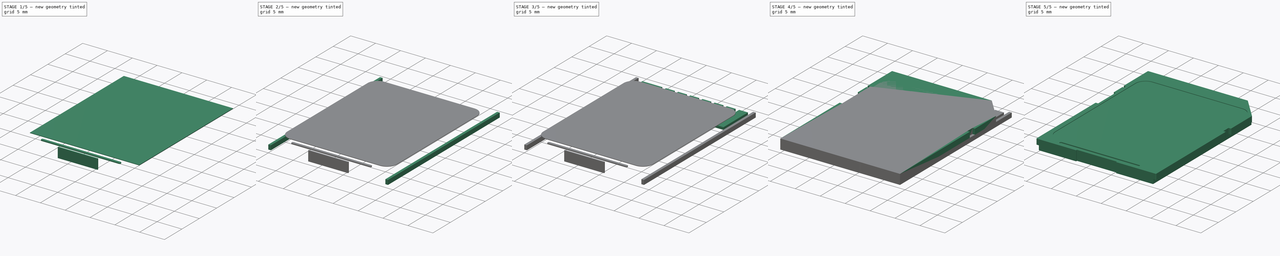
[diagram: build sequence overview — one tinted view per stage of 5, left to right]
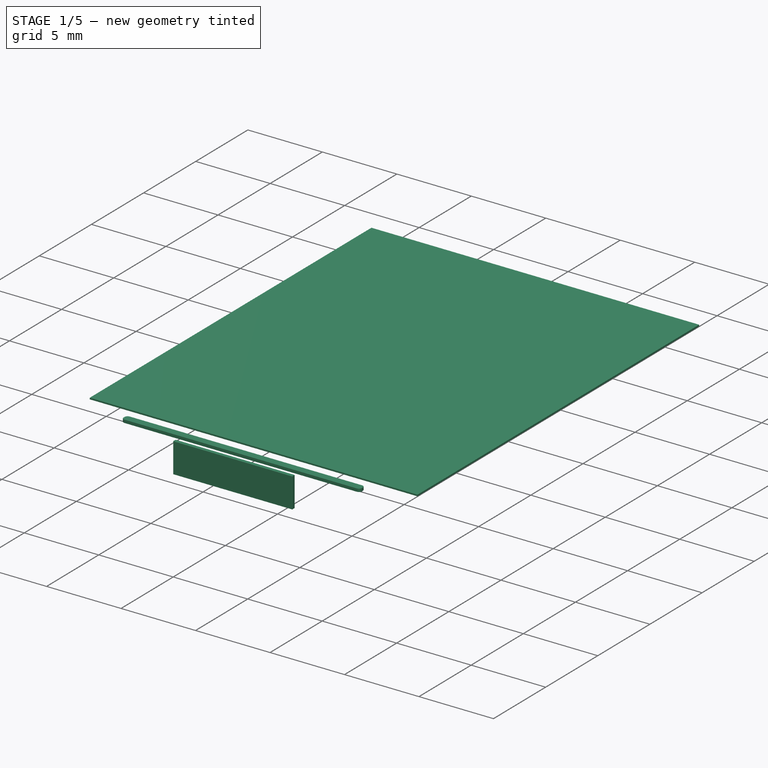
[diagram: stage 1 of 5 — iso view after this stage's code; geometry added in this stage tinted green]
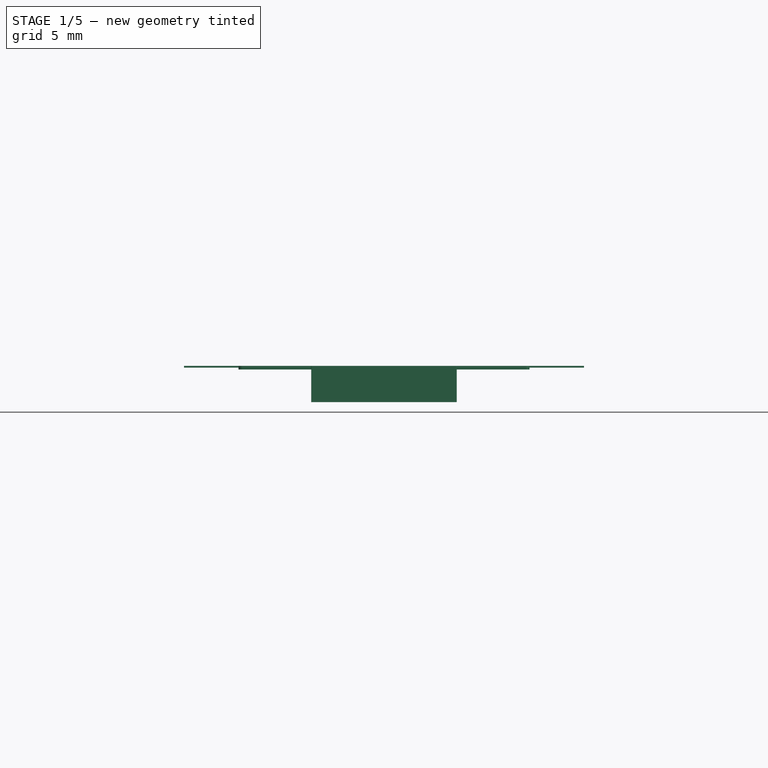
[diagram: stage 1 of 5 — front view after this stage's code; geometry added in this stage tinted green]
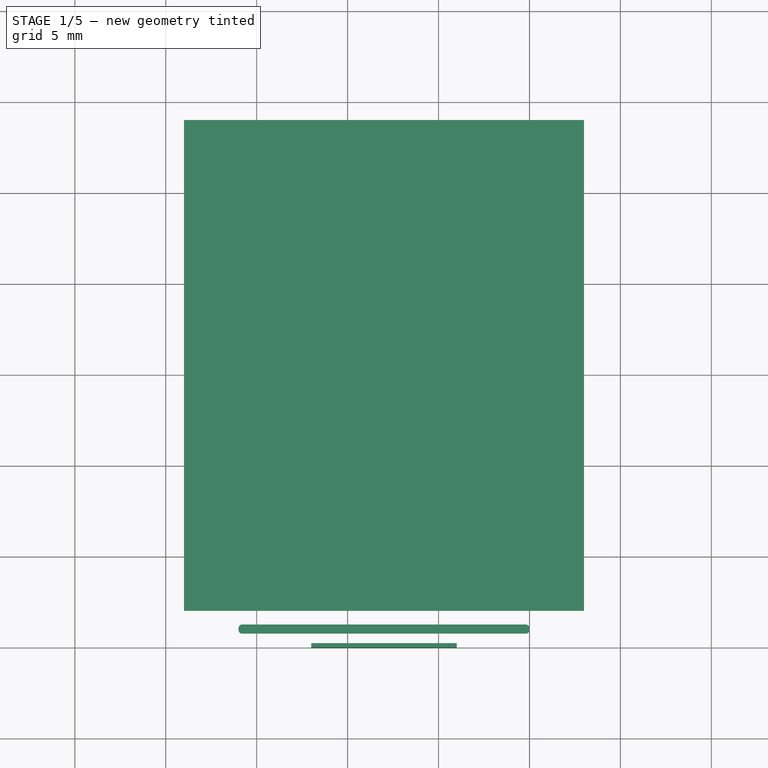
[diagram: stage 1 of 5 — top view after this stage's code; geometry added in this stage tinted green]
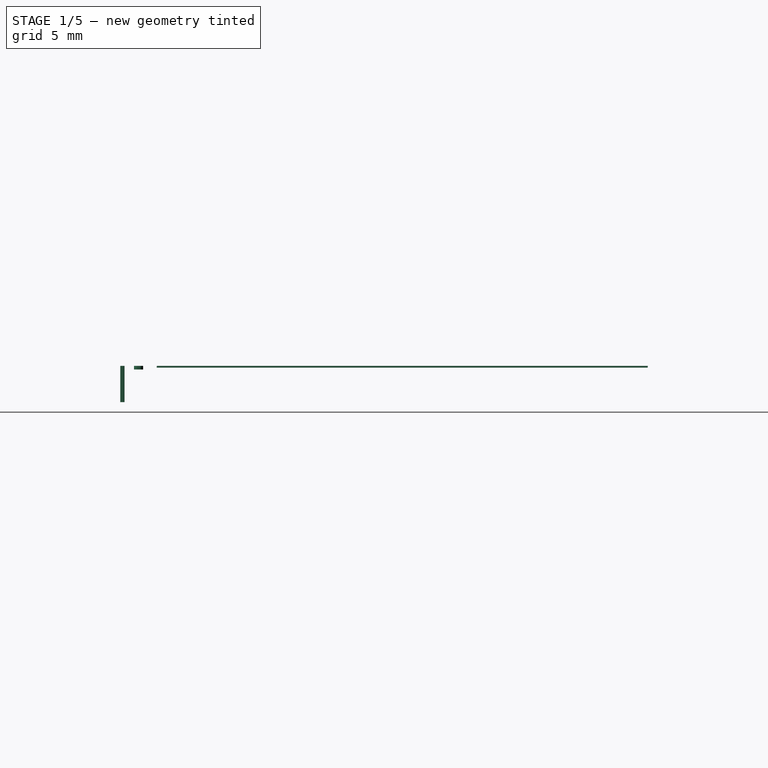
[diagram: stage 1 of 5 — right view after this stage's code; geometry added in this stage tinted green]
FCSTD DOCUMENT  (FreeCAD 0.16R6703 (Git))
Label: Generic_SD_card
License: All rights reserved
LicenseURL: http://en.wikipedia.org/wiki/All_rights_reserved
objects: Sketcher::SketchObject×10, PartDesign::Pad×10, Part::Fillet×6, Part::MultiFuse×5, Part::Cut×2, Part::FeaturePython×1, Part::Feature×1
note: 45 computed .brp shape members not serialized (recipe doc carries the construction recipe); baked Part::Feature solids carry a one-line shape summary decoded from their .brp

FEATURE [Sketcher::SketchObject] Sketch007  label="sticker_hole"
  Placement = pos=(0,0,1.9) rot=(0,0,1;0rad)
  sketch-geometry (4):
    g0: LineSegment StartX=1 StartY=29 StartZ=0 EndX=23 EndY=29 EndZ=0
    g1: LineSegment StartX=23 StartY=29 StartZ=0 EndX=23 EndY=2 EndZ=0
    g2: LineSegment StartX=23 StartY=2 StartZ=0 EndX=1 EndY=2 EndZ=0
    g3: LineSegment StartX=1 StartY=2 StartZ=0 EndX=1 EndY=29 EndZ=0
  constraints (8):
    c: Coincident(g0,g1)
    c: Coincident(g1,g2)
    c: Coincident(g2,g3)
    c: Coincident(g3,g0)
    c: Horizontal(g0)
    c: Horizontal(g2)
    c: Vertical(g1)
    c: Vertical(g3)
FEATURE [PartDesign::Pad] Pad007  label="sticker_hole001"
  Length = 0.1
  Length2 = 100
  Placement = pos=(0,0,1.9) rot=(0,0,1;0rad)
  Sketch = -> Sketch007
  Type = 0
FEATURE [Sketcher::SketchObject] Sketch008  label="nail_groove"
  Placement = pos=(0,0,1.8) rot=(0,0,1;0rad)
  sketch-geometry (4):
    g0: LineSegment StartX=4 StartY=0.75 StartZ=0 EndX=20 EndY=0.75 EndZ=0
    g1: LineSegment StartX=20 StartY=0.75 StartZ=0 EndX=20 EndY=1.25 EndZ=0
    g2: LineSegment StartX=20 StartY=1.25 StartZ=0 EndX=4 EndY=1.25 EndZ=0
    g3: LineSegment StartX=4 StartY=1.25 StartZ=0 EndX=4 EndY=0.75 EndZ=0
  constraints (10):
    c: Coincident(g0,g1)
    c: Coincident(g1,g2)
    c: Coincident(g2,g3)
    c: Coincident(g3,g0)
    c: Horizontal(g0)
    c: Horizontal(g2)
    c: Vertical(g1)
    c: Vertical(g3)
    c: DistanceY(g0,g2) = 0.5
    c: DistanceY(g-1,g0) = 0.75
FEATURE [PartDesign::Pad] Pad008  label="nail_groove001"
  Length = 0.2
  Length2 = 100
  Placement = pos=(0,0,1.8) rot=(0,0,1;0rad)
  Sketch = -> Sketch008
  Type = 0
FEATURE [Part::Fillet] Fillet004  label="nail_groove002"
  Base = -> Pad008
  Edges = 4 edges r=0.2: [Edge1,Edge2,Edge5,Edge8]
FEATURE [Sketcher::SketchObject] Sketch009  label="botton_hole"
  Placement = pos=(0,-0.01,0) rot=(0,0,1;0rad)
  sketch-geometry (4):
    g0: LineSegment StartX=8 StartY=0 StartZ=0 EndX=16 EndY=0 EndZ=0
    g1: LineSegment StartX=16 StartY=0 StartZ=0 EndX=16 EndY=0.235859 EndZ=0
    g2: LineSegment StartX=16 StartY=0.235859 StartZ=0 EndX=8 EndY=0.235859 EndZ=0
    g3: LineSegment StartX=8 StartY=0.235859 StartZ=0 EndX=8 EndY=0 EndZ=0
  constraints (9):
    c: Coincident(g0,g1)
    c: Coincident(g1,g2)
    c: Coincident(g2,g3)
    c: Coincident(g3,g0)
    c: Horizontal(g0)
    c: Horizontal(g2)
    c: Vertical(g1)
    c: Vertical(g3)
    c: PointOnObject(g0,g-1)
FEATURE [PartDesign::Pad] Pad009  label="bottom_hole"
  Length = 2
  Length2 = 100
  Placement = pos=(0,-0.01,0) rot=(0,0,1;0rad)
  Sketch = -> Sketch009
  Type = 0
FEATURE [Part::Fillet] Fillet005  label="bottom_hole001"
  Base = -> Pad009
  Edges = 4 edges r=0.02: [Edge1,Edge2,Edge5,Edge8]
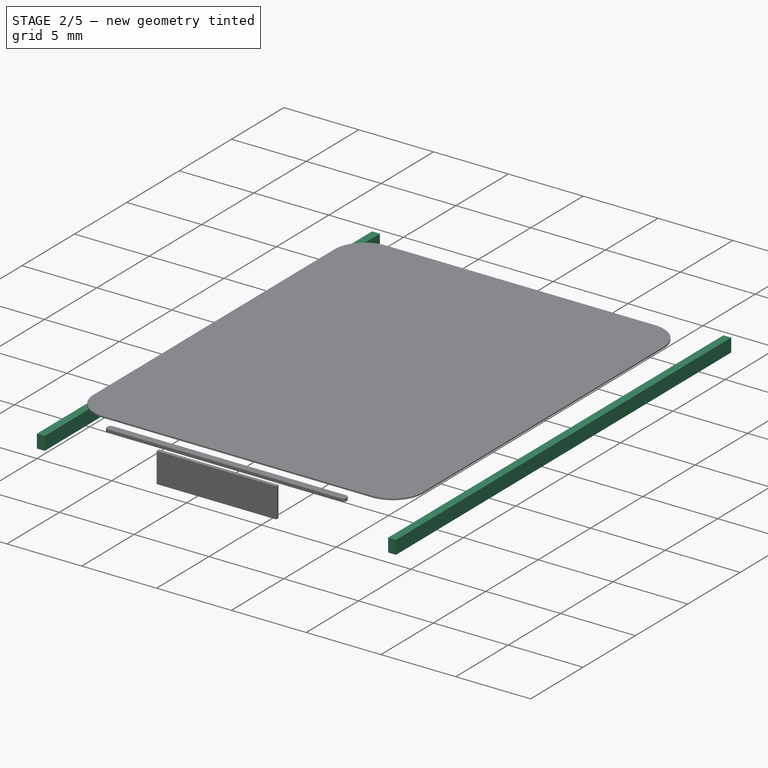
[diagram: stage 2 of 5 — iso view after this stage's code; geometry added in this stage tinted green]
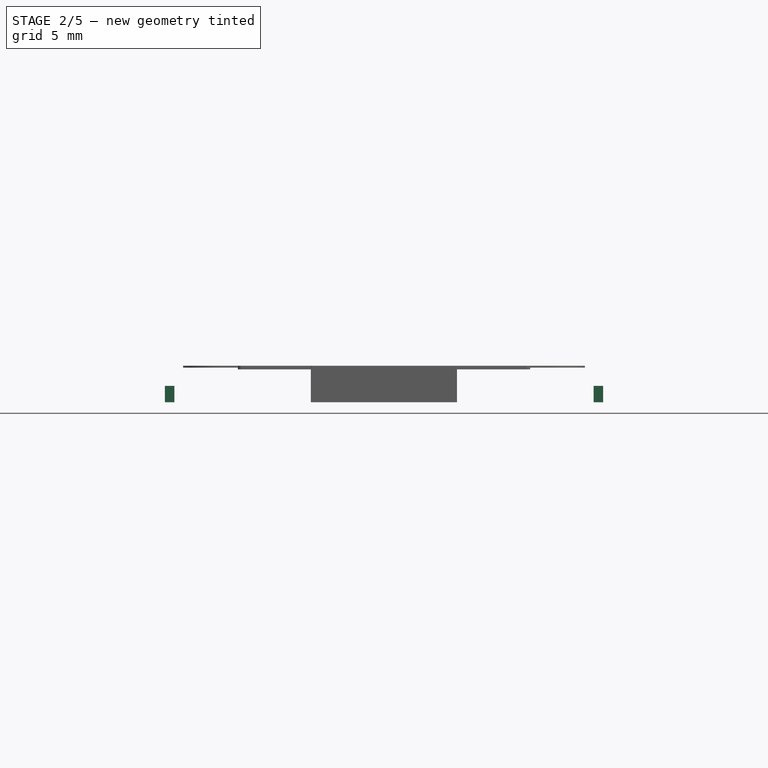
[diagram: stage 2 of 5 — front view after this stage's code; geometry added in this stage tinted green]
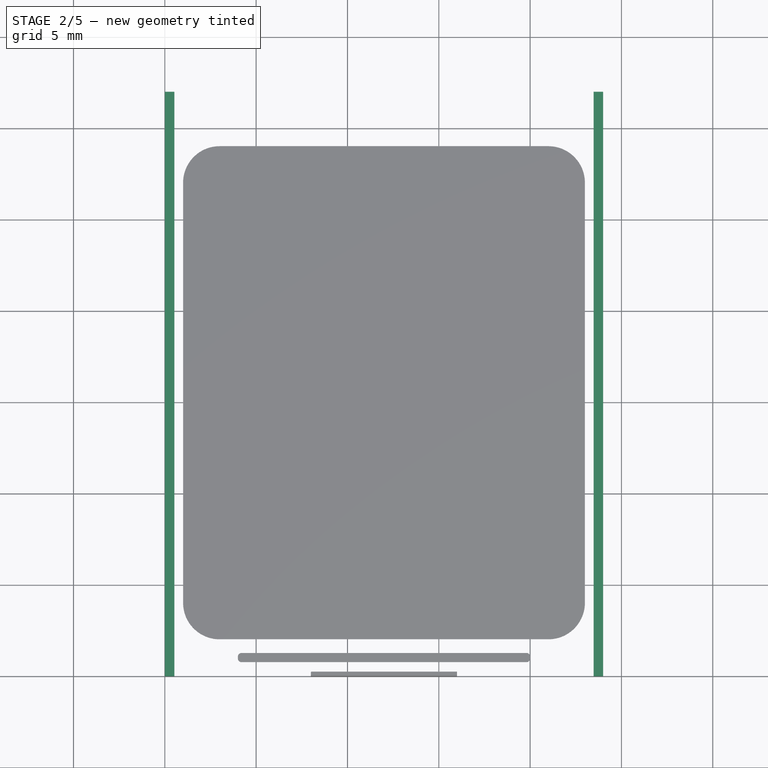
[diagram: stage 2 of 5 — top view after this stage's code; geometry added in this stage tinted green]
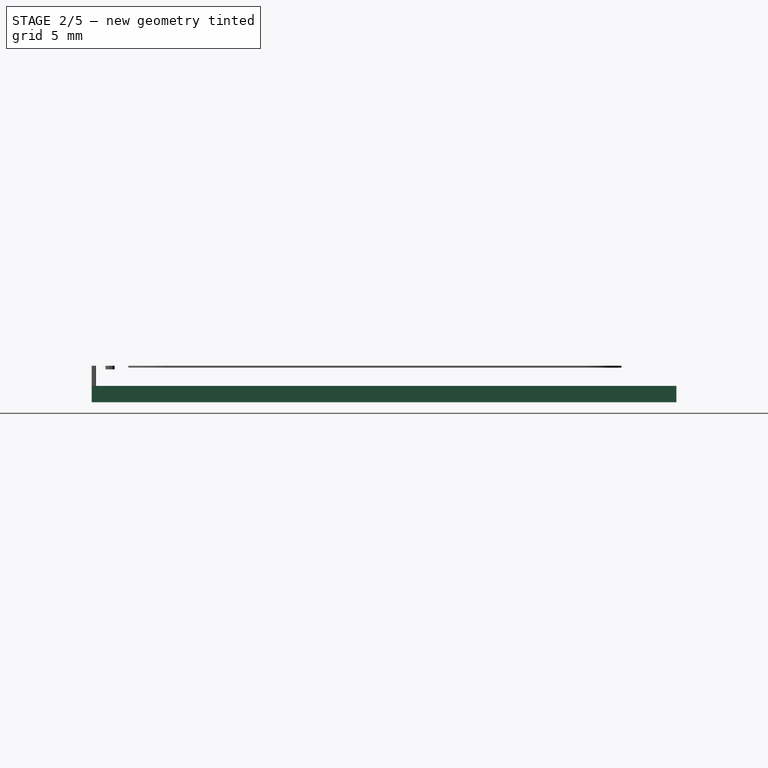
[diagram: stage 2 of 5 — right view after this stage's code; geometry added in this stage tinted green]
FEATURE [Sketcher::SketchObject] Sketch005  label="rail"
  Placement = pos=(0,0,0) rot=(1,0,0;3.14159rad)
  sketch-geometry (4):
    g0: LineSegment StartX=0 StartY=0 StartZ=0 EndX=0.521208 EndY=0 EndZ=0
    g1: LineSegment StartX=0.521208 StartY=0 StartZ=0 EndX=0.521208 EndY=-32 EndZ=0
    g2: LineSegment StartX=0.521208 StartY=-32 StartZ=0 EndX=0 EndY=-32 EndZ=0
    g3: LineSegment StartX=0 StartY=-32 StartZ=0 EndX=0 EndY=0 EndZ=0
  constraints (9):
    c: Coincident(g0,g1)
    c: Coincident(g1,g2)
    c: Coincident(g2,g3)
    c: Coincident(g3,g0)
    c: Horizontal(g0)
    c: Horizontal(g2)
    c: Vertical(g1)
    c: Vertical(g3)
    c: Coincident(g0,g-1)
FEATURE [PartDesign::Pad] Pad005  label="rail001"
  Length = 0.9
  Length2 = 100
  Placement = pos=(0,0,0) rot=(1,0,0;3.14159rad)
  Reversed = true
  Sketch = -> Sketch005
  Type = 0
FEATURE [Sketcher::SketchObject] Sketch006  label="rail002"
  Placement = pos=(23.479,0,0) rot=(1,0,0;3.14159rad)
  sketch-geometry (4):
    g0: LineSegment StartX=0 StartY=0 StartZ=0 EndX=0.521208 EndY=0 EndZ=0
    g1: LineSegment StartX=0.521208 StartY=0 StartZ=0 EndX=0.521208 EndY=-32 EndZ=0
    g2: LineSegment StartX=0.521208 StartY=-32 StartZ=0 EndX=0 EndY=-32 EndZ=0
    g3: LineSegment StartX=0 StartY=-32 StartZ=0 EndX=0 EndY=0 EndZ=0
  constraints (9):
    c: Coincident(g0,g1)
    c: Coincident(g1,g2)
    c: Coincident(g2,g3)
    c: Coincident(g3,g0)
    c: Horizontal(g0)
    c: Horizontal(g2)
    c: Vertical(g1)
    c: Vertical(g3)
    c: Coincident(g0,g-1)
FEATURE [PartDesign::Pad] Pad006  label="rail003"
  Length = 0.9
  Length2 = 100
  Placement = pos=(23.479,0,0) rot=(1,0,0;3.14159rad)
  Reversed = true
  Sketch = -> Sketch006
  Type = 0
FEATURE [Part::MultiFuse] Fusion003  label="rails"
  Shapes = -> [Pad005,Pad006]
FEATURE [Part::Fillet] Fillet003  label="sticker_hole002"
  Base = -> Pad007
  Edges = 4 edges r=2: [Edge1,Edge2,Edge5,Edge8]
FEATURE [Part::MultiFuse] Fusion005  label="groove_sticker_bottom_hole"
  Shapes = -> [Fillet005,Fillet004,Fillet003]
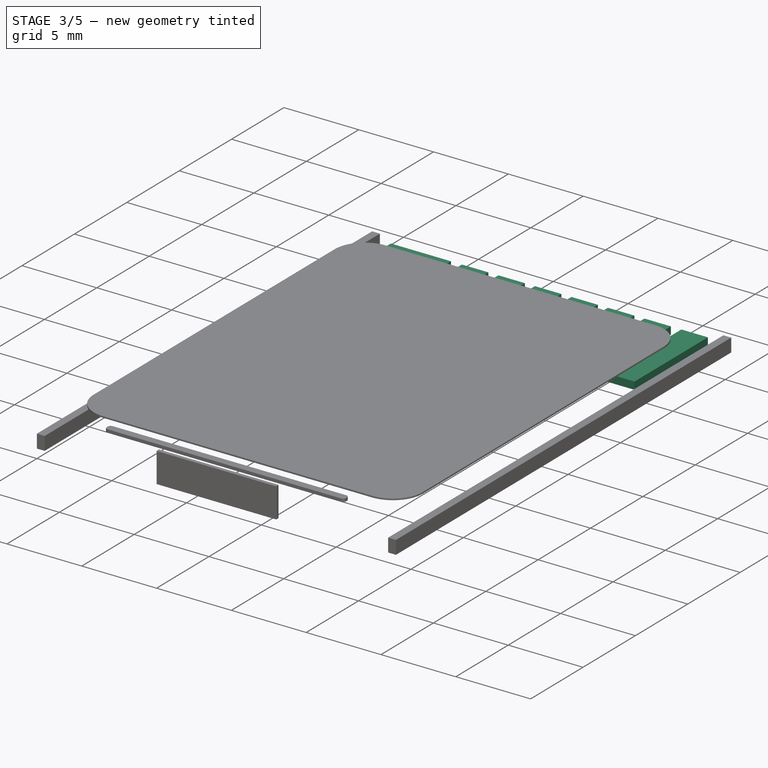
[diagram: stage 3 of 5 — iso view after this stage's code; geometry added in this stage tinted green]
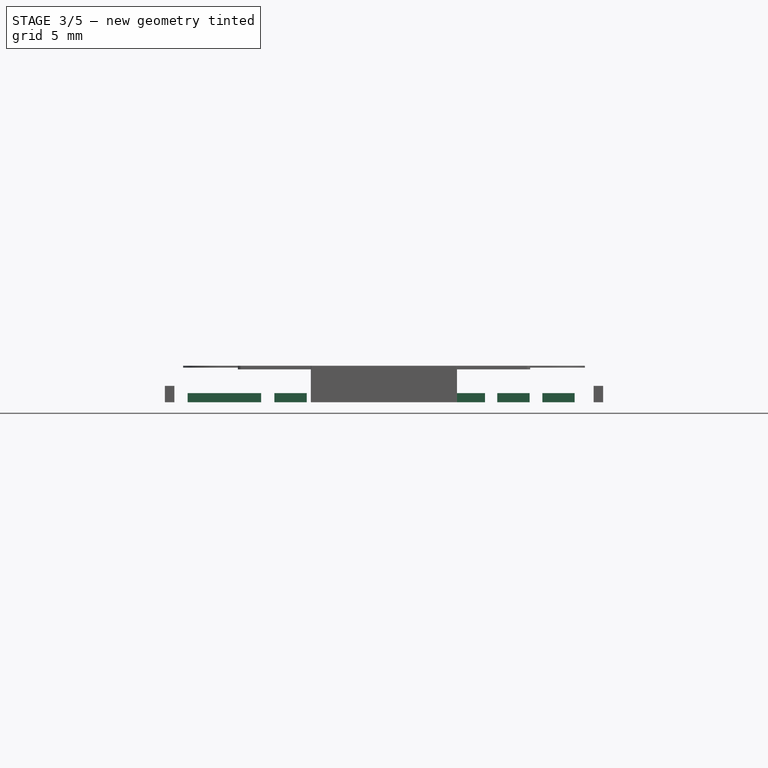
[diagram: stage 3 of 5 — front view after this stage's code; geometry added in this stage tinted green]
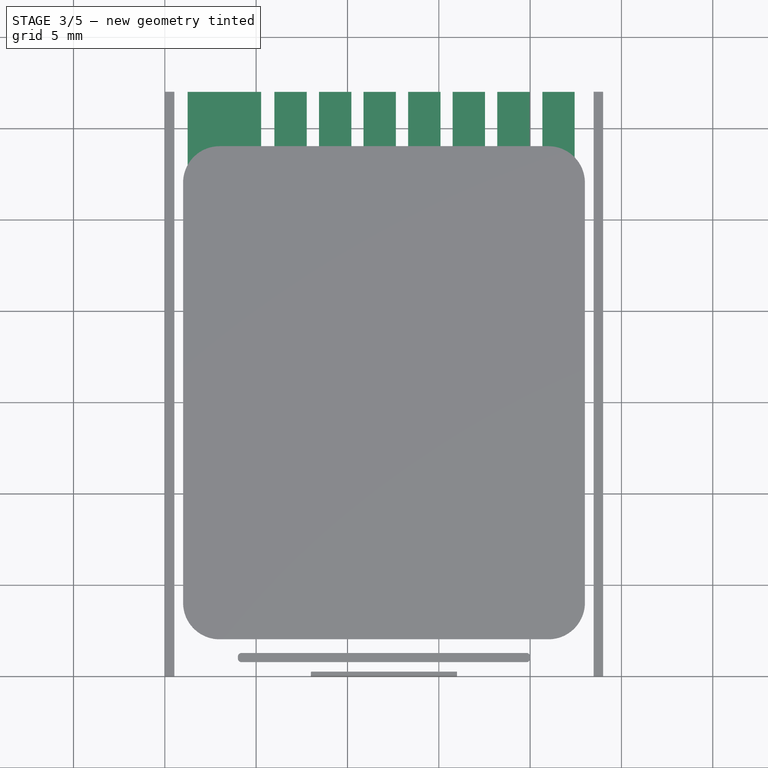
[diagram: stage 3 of 5 — top view after this stage's code; geometry added in this stage tinted green]
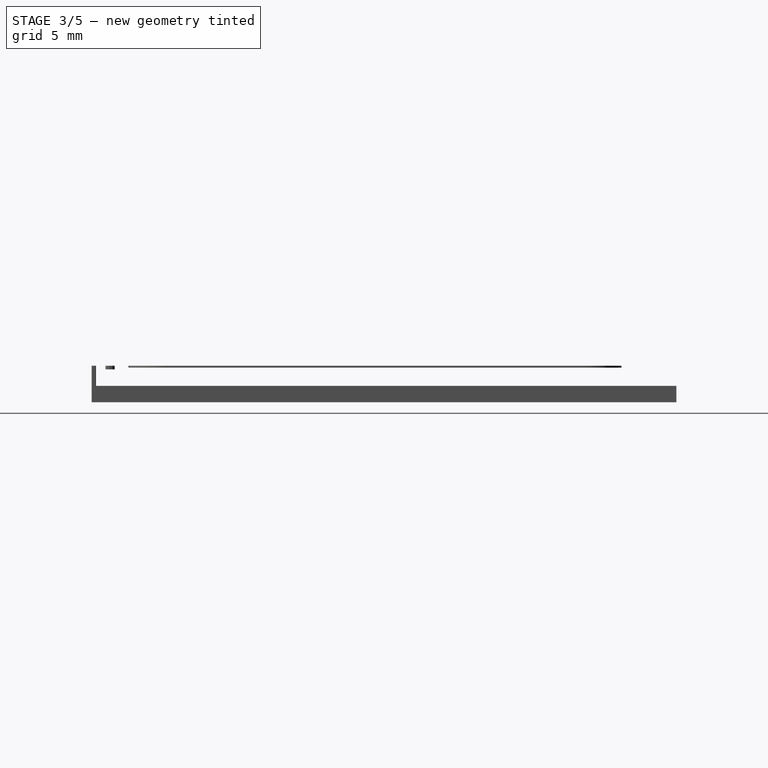
[diagram: stage 3 of 5 — right view after this stage's code; geometry added in this stage tinted green]
FEATURE [Sketcher::SketchObject] Sketch002
  Placement = pos=(-0.3,0,0) rot=(1,0,0;3.14159rad)
  sketch-geometry (4):
    g0: LineSegment StartX=1.55184 StartY=-32 StartZ=0 EndX=5.57348 EndY=-32 EndZ=0
    g1: LineSegment StartX=5.57348 StartY=-32 StartZ=0 EndX=5.57348 EndY=-26 EndZ=0
    g2: LineSegment StartX=5.57348 StartY=-26 StartZ=0 EndX=1.55184 EndY=-26 EndZ=0
    g3: LineSegment StartX=1.55184 StartY=-26 StartZ=0 EndX=1.55184 EndY=-32 EndZ=0
  constraints (8):
    c: Horizontal(g0)
    c: Coincident(g1,g0)
    c: Vertical(g1)
    c: Coincident(g2,g1)
    c: Horizontal(g2)
    c: Coincident(g3,g2)
    c: Coincident(g3,g0)
    c: Vertical(g3)
FEATURE [PartDesign::Pad] Pad002  label="double_contact"
  Length = 0.5
  Length2 = 100
  Placement = pos=(-0.3,0,0) rot=(1,0,0;3.14159rad)
  Reversed = true
  Sketch = -> Sketch002
  Type = 0
FEATURE [Sketcher::SketchObject] Sketch003  label="single_contact"
  Placement = pos=(0,0,0) rot=(1,0,0;3.14159rad)
  sketch-geometry (4):
    g0: LineSegment StartX=6 StartY=-32 StartZ=0 EndX=7.77137 EndY=-32 EndZ=0
    g1: LineSegment StartX=7.77137 StartY=-32 StartZ=0 EndX=7.77137 EndY=-26 EndZ=0
    g2: LineSegment StartX=7.77137 StartY=-26 StartZ=0 EndX=6 EndY=-26 EndZ=0
    g3: LineSegment StartX=6 StartY=-26 StartZ=0 EndX=6 EndY=-32 EndZ=0
  constraints (8):
    c: Horizontal(g0)
    c: Coincident(g0,g1)
    c: Vertical(g1)
    c: Coincident(g1,g2)
    c: Horizontal(g2)
    c: Coincident(g2,g3)
    c: Coincident(g3,g0)
    c: Vertical(g3)
FEATURE [PartDesign::Pad] Pad003  label="single_contact001"
  Length = 0.5
  Length2 = 100
  Placement = pos=(0,0,0) rot=(1,0,0;3.14159rad)
  Reversed = true
  Sketch = -> Sketch003
  Type = 0
FEATURE [Part::FeaturePython] Array  label="single_contact_array"  # Draft array (typed FeaturePython)
  Angle = 360
  ArrayType = 0
  Axis = (0,0,1)
  Base = -> Pad003
  Center = (0,0,0)
  Fuse = false
  IntervalAxis = (0,0,0)
  IntervalX = (2.44,0,0)
  IntervalY = (0,0,0)
  IntervalZ = (0,0,0)
  NumberPolar = 6
  NumberX = 6
  NumberY = 0
  NumberZ = 1
FEATURE [Sketcher::SketchObject] Sketch004  label="single_contact002"
  Placement = pos=(14.44,0,0) rot=(1,0,0;3.14159rad)
  sketch-geometry (4):
    g0: LineSegment StartX=6.22863 StartY=-32 StartZ=0 EndX=8 EndY=-32 EndZ=0
    g1: LineSegment StartX=8 StartY=-32 StartZ=0 EndX=8 EndY=-25 EndZ=0
    g2: LineSegment StartX=8 StartY=-25 StartZ=0 EndX=6.22863 EndY=-25 EndZ=0
    g3: LineSegment StartX=6.22863 StartY=-25 StartZ=0 EndX=6.22863 EndY=-32 EndZ=0
  constraints (9):
    c: Horizontal(g0)
    c: Coincident(g0,g1)
    c: Vertical(g1)
    c: Coincident(g1,g2)
    c: Horizontal(g2)
    c: Coincident(g2,g3)
    c: Coincident(g3,g0)
    c: Vertical(g3)
    c: DistanceX(g2,g1) = 1.77137
FEATURE [PartDesign::Pad] Pad004  label="large_single_contact"
  Length = 0.5
  Length2 = 100
  Placement = pos=(14.44,0,0) rot=(1,0,0;3.14159rad)
  Reversed = true
  Sketch = -> Sketch004
  Type = 0
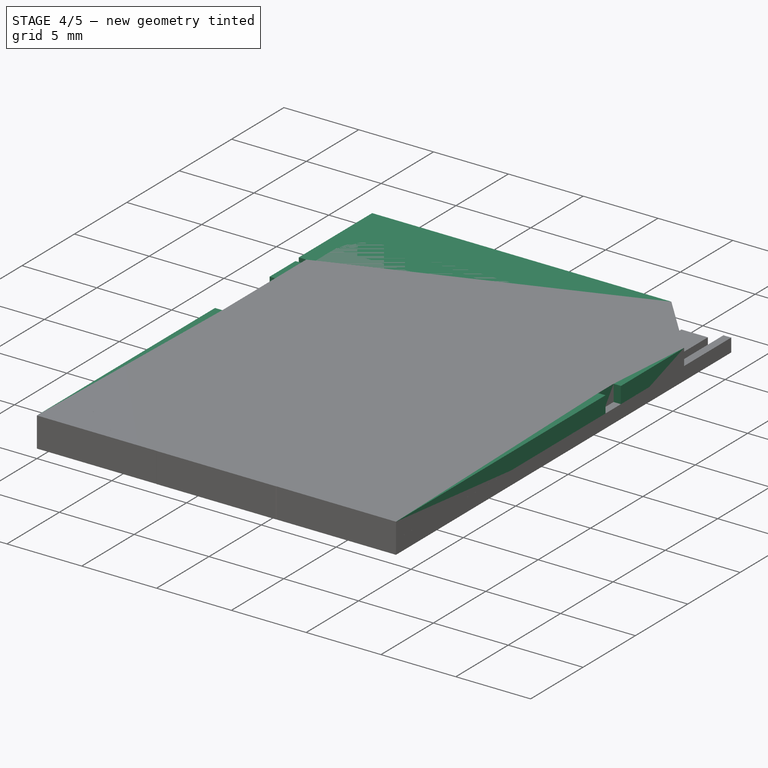
[diagram: stage 4 of 5 — iso view after this stage's code; geometry added in this stage tinted green]
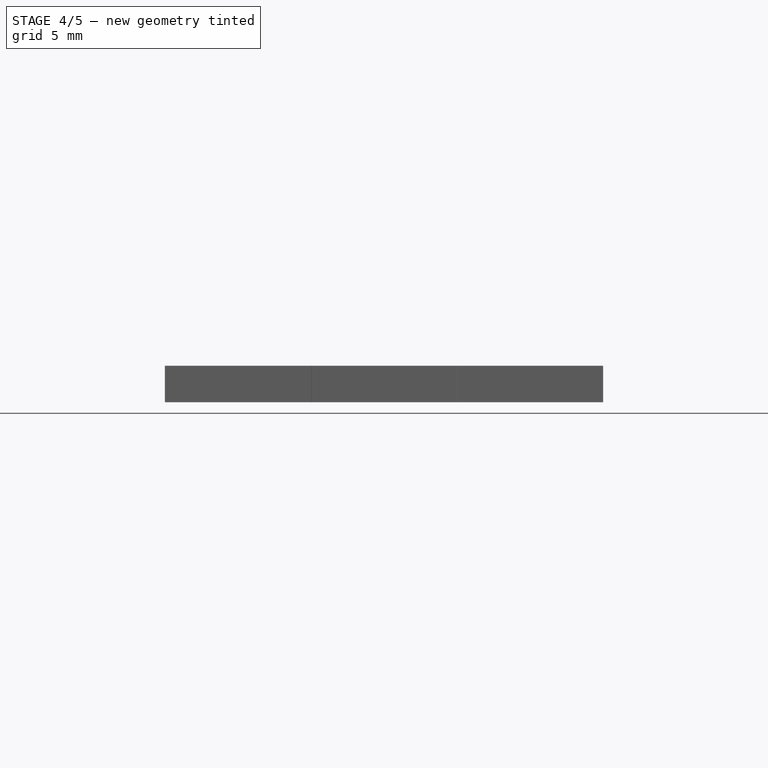
[diagram: stage 4 of 5 — front view after this stage's code; geometry added in this stage tinted green]
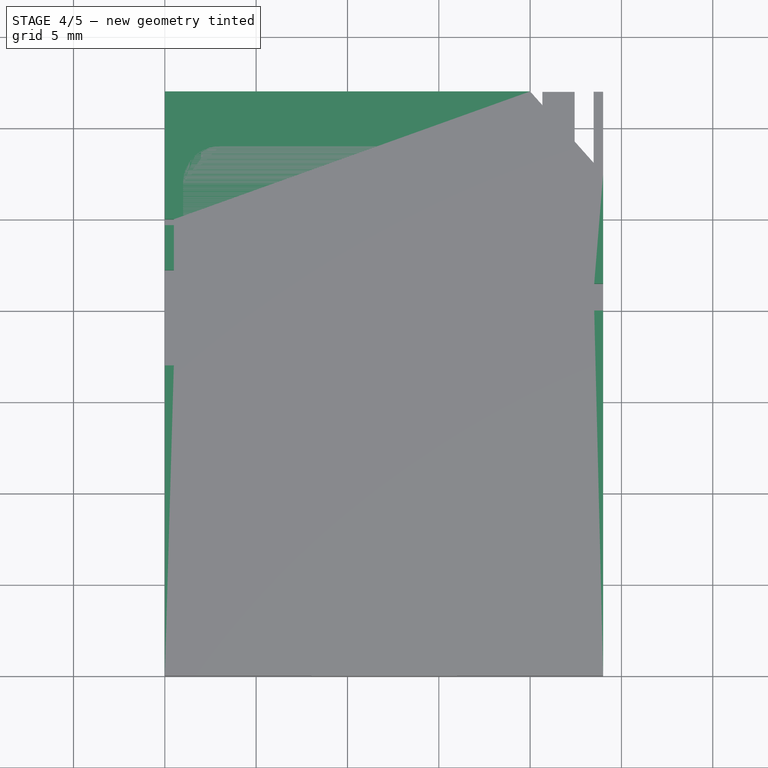
[diagram: stage 4 of 5 — top view after this stage's code; geometry added in this stage tinted green]
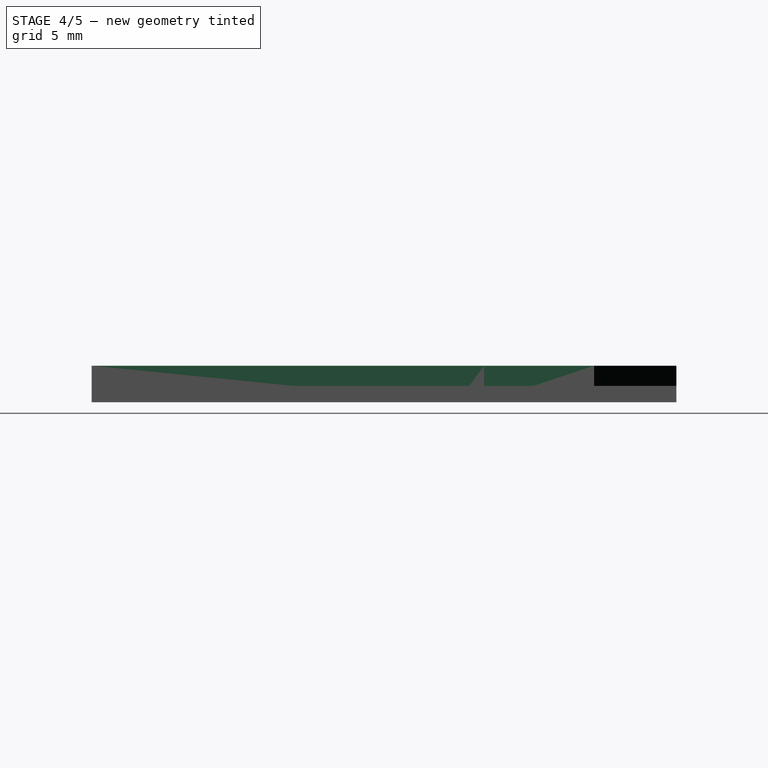
[diagram: stage 4 of 5 — right view after this stage's code; geometry added in this stage tinted green]
FEATURE [Sketcher::SketchObject] Sketch  label="SD_shape"
  sketch-geometry (13):
    g0: LineSegment StartX=0 StartY=0 StartZ=0 EndX=24 EndY=0 EndZ=0
    g1: LineSegment StartX=0 StartY=32 StartZ=0 EndX=20 EndY=32 EndZ=0
    g2: LineSegment StartX=20 StartY=32 StartZ=0 EndX=24 EndY=27.5 EndZ=0
    g3: LineSegment StartX=24 StartY=0 StartZ=0 EndX=24 EndY=20 EndZ=0
    g4: LineSegment StartX=24 StartY=20 StartZ=0 EndX=23.5087 EndY=20 EndZ=0
    g5: LineSegment StartX=23.5087 StartY=20 StartZ=0 EndX=23.5087 EndY=21.4718 EndZ=0
    g6: LineSegment StartX=23.5087 StartY=21.4718 StartZ=0 EndX=24 EndY=21.4718 EndZ=0
    g7: LineSegment StartX=24 StartY=27.5 StartZ=0 EndX=24 EndY=21.4718 EndZ=0
    g8: LineSegment StartX=0 StartY=0 StartZ=0 EndX=0 EndY=17 EndZ=0
    g9: LineSegment StartX=0 StartY=32 StartZ=0 EndX=0 EndY=25 EndZ=0
    g10: LineSegment StartX=0 StartY=25 StartZ=0 EndX=0.493546 EndY=25 EndZ=0
    g11: LineSegment StartX=0 StartY=17 StartZ=0 EndX=0.493546 EndY=17 EndZ=0
    g12: LineSegment StartX=0.493546 StartY=17 StartZ=0 EndX=0.493546 EndY=25 EndZ=0
  constraints (29):
    c: PointOnObject(g1,g-2)
    c: Coincident(g0,g-1)
    c: PointOnObject(g0,g-1)
    c: Distance(g0) = 24
    c: Horizontal(g1)
    c: Distance(g1) = 20
    c: Coincident(g2,g1)
    c: Coincident(g3,g0)
    c: Vertical(g3)
    c: Coincident(g4,g3)
    c: Horizontal(g4)
    c: Coincident(g5,g4)
    c: Vertical(g5)
    c: Coincident(g6,g5)
    c: Horizontal(g6)
    c: Coincident(g7,g2)
    c: Coincident(g7,g6)
    c: Vertical(g7)
    c: PointOnObject(g8,g-2)
    c: Vertical(g8)
    c: Coincident(g9,g1)
    c: Vertical(g9)
    c: Coincident(g10,g9)
    c: Horizontal(g10)
    c: Coincident(g11,g8)
    c: Horizontal(g11)
    c: Coincident(g12,g11)
    c: Coincident(g12,g10)
    c: Vertical(g12)
FEATURE [PartDesign::Pad] Pad  label="SD_shape001"
  Length = 2
  Length2 = 100
  Sketch = -> Sketch
  Type = 0
FEATURE [Sketcher::SketchObject] Sketch001  label="lock_button"
  Placement = pos=(0,0,1) rot=(0,0,1;0rad)
  sketch-geometry (4):
    g0: LineSegment StartX=0.49404 StartY=24.6813 StartZ=0 EndX=0 EndY=24.6813 EndZ=0
    g1: LineSegment StartX=0 StartY=24.6813 StartZ=0 EndX=0 EndY=22.2097 EndZ=0
    g2: LineSegment StartX=0 StartY=22.2097 StartZ=0 EndX=0.49404 EndY=22.2097 EndZ=0
    g3: LineSegment StartX=0.49404 StartY=24.6813 StartZ=0 EndX=0.49404 EndY=22.2097 EndZ=0
  constraints (9):
    c: PointOnObject(g0,g-2)
    c: Horizontal(g0)
    c: Coincident(g1,g0)
    c: PointOnObject(g1,g-2)
    c: Coincident(g2,g1)
    c: Horizontal(g2)
    c: Coincident(g3,g0)
    c: Coincident(g3,g2)
    c: Vertical(g3)
FEATURE [PartDesign::Pad] Pad001  label="lock_button001"
  Length = 0.9
  Length2 = 100
  Placement = pos=(0,0,1) rot=(0,0,1;0rad)
  Sketch = -> Sketch001
  Type = 0
FEATURE [Part::MultiFuse] Fusion  label="contacts"
  Shapes = -> [Array,Pad002,Pad003,Pad004]
FEATURE [Part::MultiFuse] Fusion002  label="sd_and_lock"
  Shapes = -> [Pad,Pad001]
FEATURE [Part::MultiFuse] Fusion004  label="rails_and_contacts"
  Shapes = -> [Fusion,Fusion003]
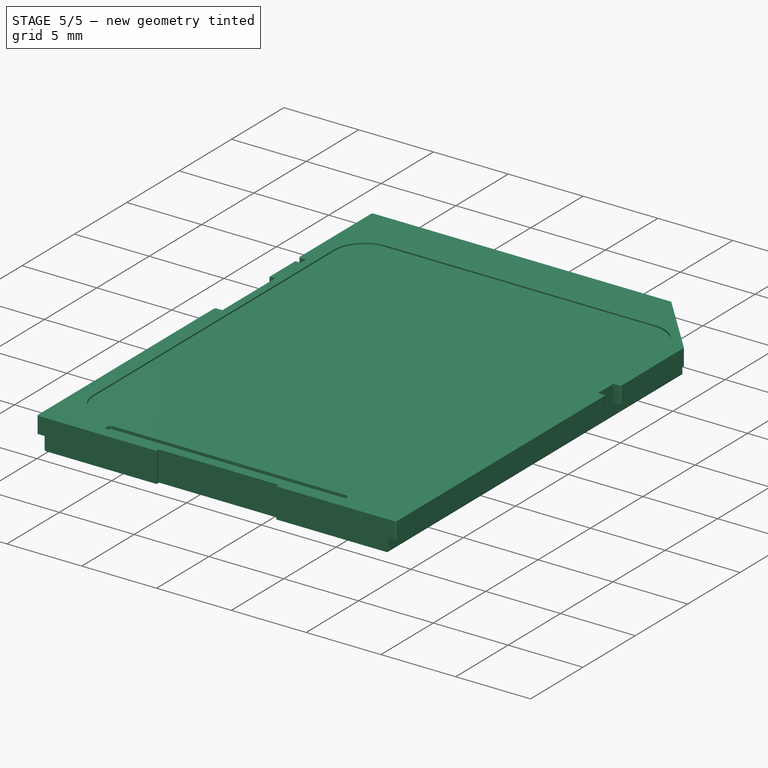
[diagram: stage 5 of 5 — iso view after this stage's code; geometry added in this stage tinted green]
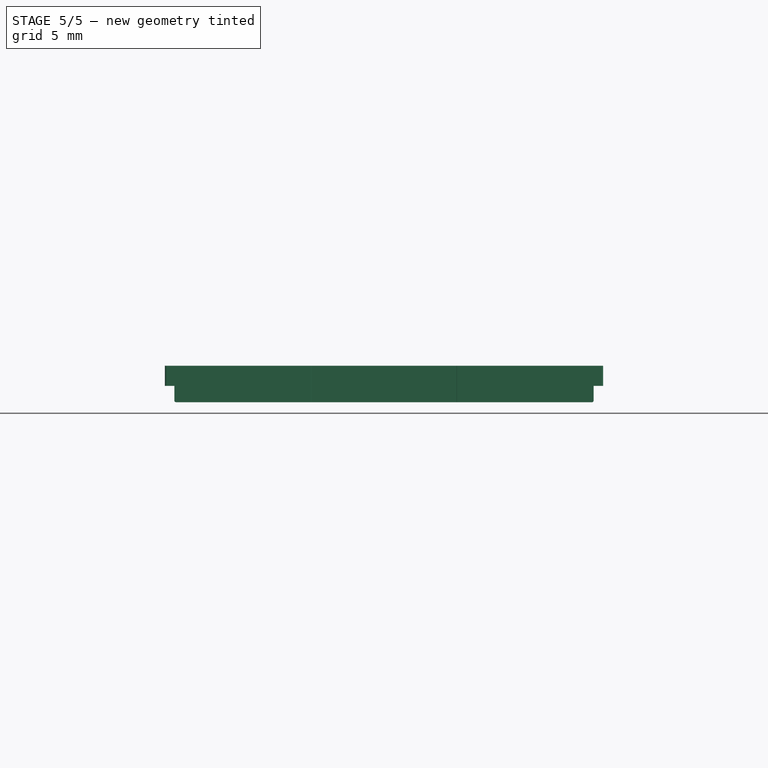
[diagram: stage 5 of 5 — front view after this stage's code; geometry added in this stage tinted green]
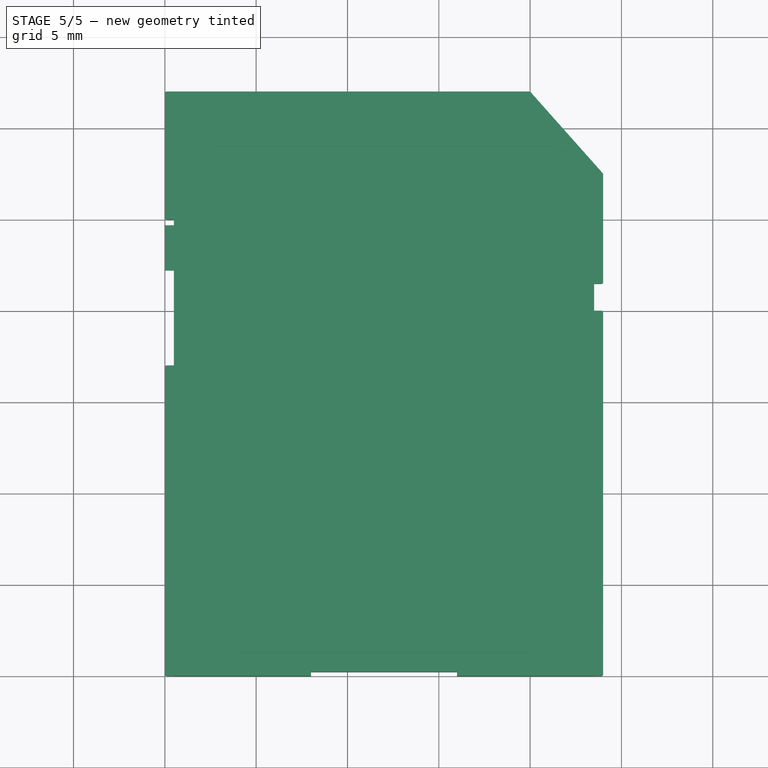
[diagram: stage 5 of 5 — top view after this stage's code; geometry added in this stage tinted green]
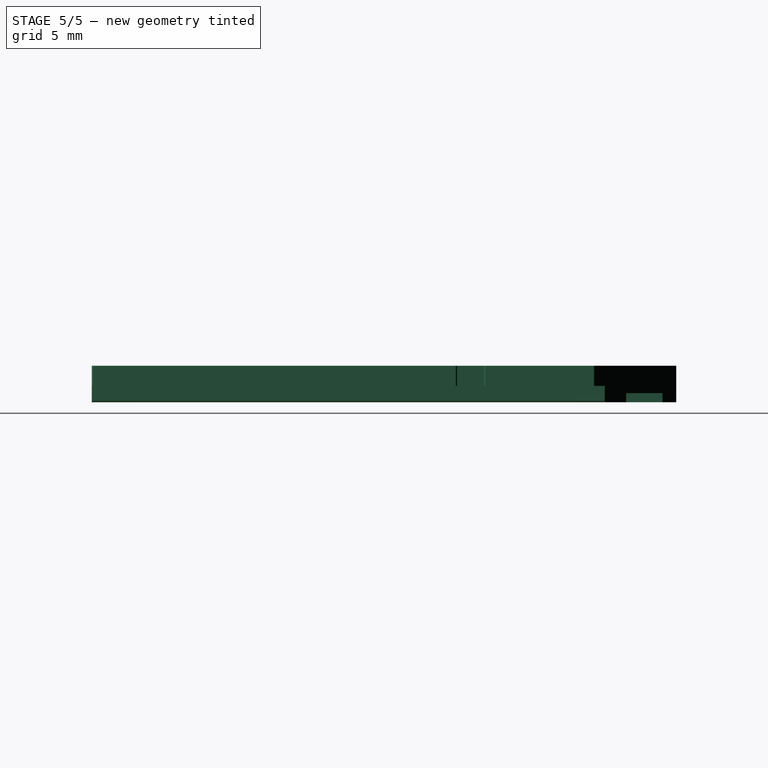
[diagram: stage 5 of 5 — right view after this stage's code; geometry added in this stage tinted green]
FEATURE [Part::Cut] Cut001  label="SD_card"
  Base = -> Fusion002
  Tool = -> Fusion004
FEATURE [Part::Fillet] Fillet
  Base = -> Cut001
  Edges = 8 edges r=0.1: [Edge6,Edge61,Edge74,Edge96,Edge97,Edge98,Edge108,Edge151]
FEATURE [Part::Fillet] Fillet001
  Base = -> Fillet
  Edges = 1 edges r=0.1: [Edge6]
FEATURE [Part::Fillet] Fillet002  label="sd_card_w_sticker"
  Base = -> Fillet001
  Edges = 2 edges r=0.1: [Edge54,Edge56]
FEATURE [Part::Cut] Cut002  label="SD_CARD"
  Base = -> Fillet002
  Tool = -> Fusion005
FEATURE [Part::Feature] Cut002001  label="SD_CARD001"
  shape: bbox 24 x 32 x 2 mm, 93 faces (baked)
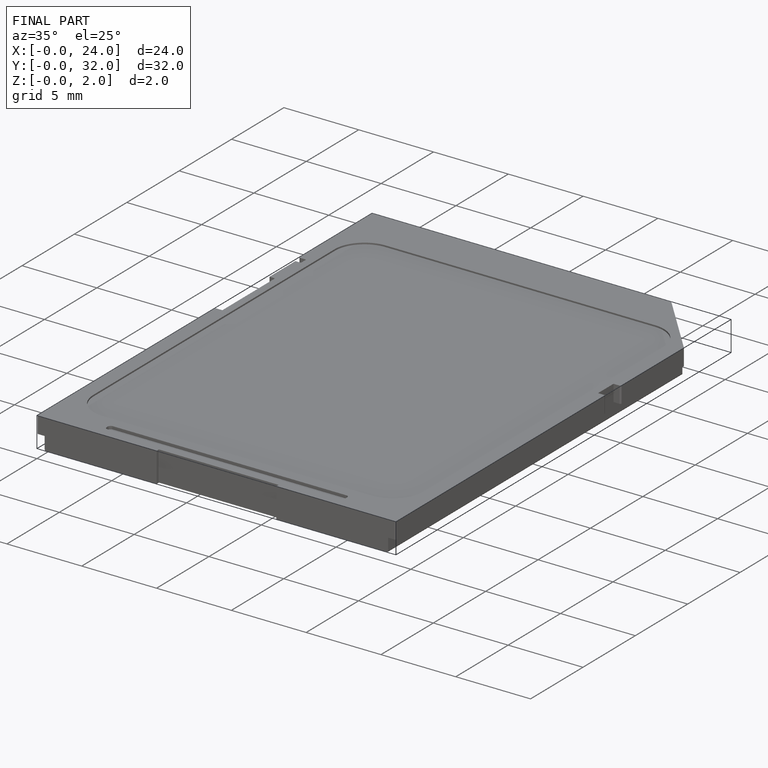
[diagram: finished part — iso view with bounding-box wireframe]
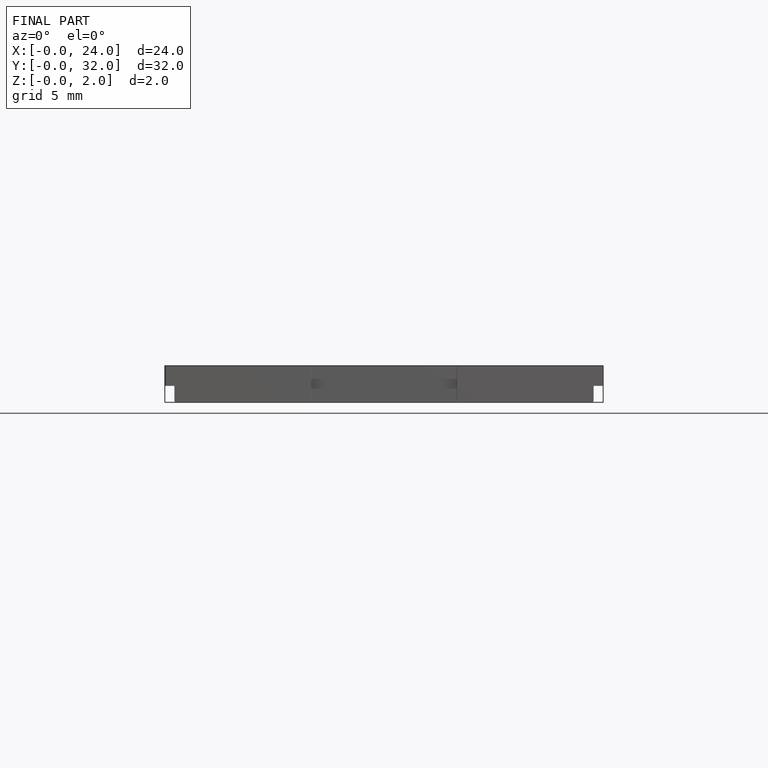
[diagram: finished part — front view with bounding-box wireframe]
